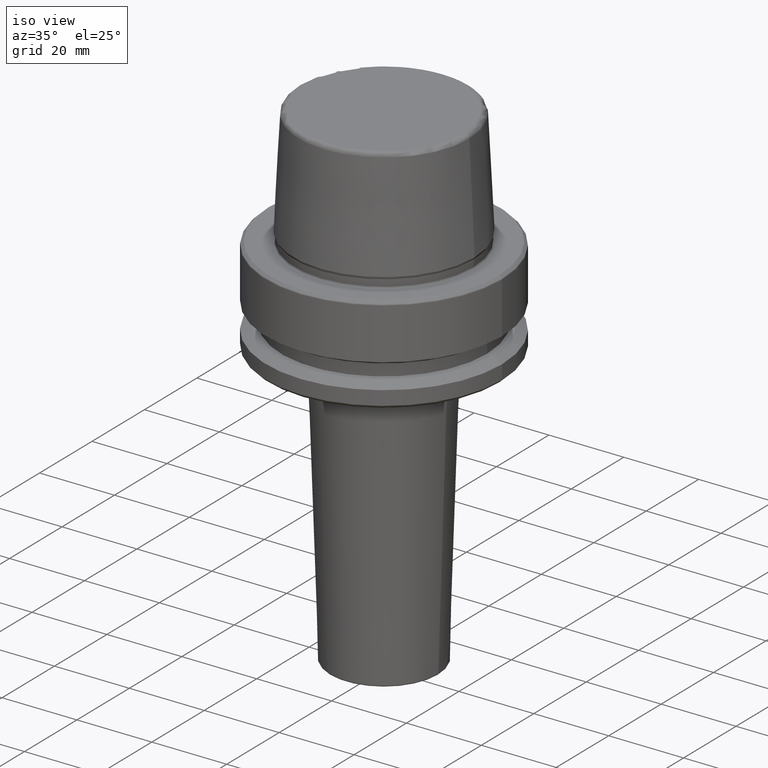
[diagram: clean part render]
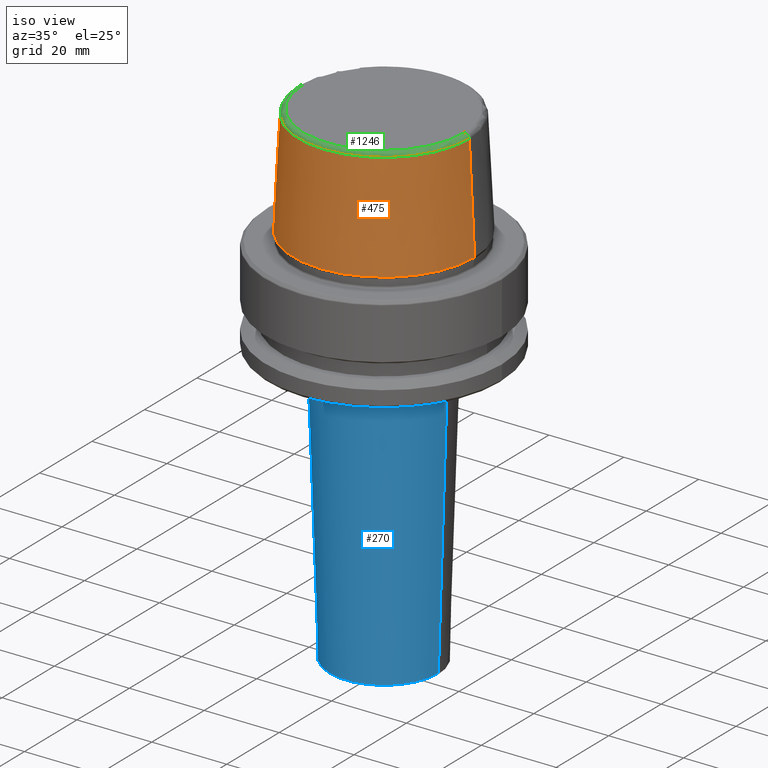
[diagram: same view with three faces highlighted in distinct colors, each labeled with its STEP entity id]
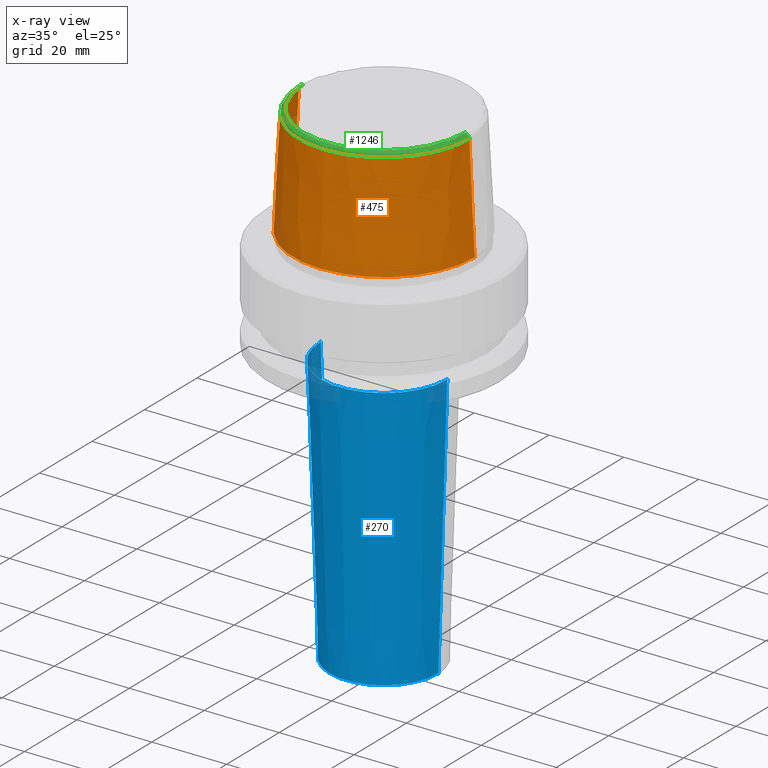
[diagram: x-ray of the same camera — body ghosted, the three highlighted faces saturated]
A machine part, iso view with three faces highlighted in distinct colors.
The next image is the same camera in x-ray (body ghosted, the three faces saturated) — at least one of them is partly hidden behind the body in this view.
Their STEP definitions:

[orange] entity #475 — the highlighted conical surface has half-angle 2.868 deg.
#160 = DIRECTION ( 'NONE',  ( 0.0000000000000000000, 0.0000000000000000000, -1.000000000000000000 ) ) ;
#234 = VECTOR ( 'NONE', #1047, 1000.000000000000200 ) ;
#281 = LINE ( 'NONE', #755, #644 ) ;
#282 = DIRECTION ( 'NONE',  ( -0.05003611051310804400, 0.0000000000000000000, -0.9987474093306675200 ) ) ;
#318 = VERTEX_POINT ( 'NONE', #787 ) ;
#371 = EDGE_LOOP ( 'NONE', ( #840, #794, #1031, #1149 ) ) ;
#378 = CARTESIAN_POINT ( 'NONE',  ( 24.19537568275369200, 2.963078938405201500E-015, 2.500000000000002200 ) ) ;
#423 = DIRECTION ( 'NONE',  ( -1.000000000000000000, 0.0000000000000000000, 0.0000000000000000000 ) ) ;
#424 = DIRECTION ( 'NONE',  ( 1.000000000000000000, 0.0000000000000000000, 0.0000000000000000000 ) ) ;
#441 = VERTEX_POINT ( 'NONE', #718 ) ;
#475 = ADVANCED_FACE ( 'NONE', ( #771 ), #1172, .T. ) ;
#502 = AXIS2_PLACEMENT_3D ( 'NONE', #893, #811, #424 ) ;
#570 = LINE ( 'NONE', #378, #234 ) ;
#603 = CARTESIAN_POINT ( 'NONE',  ( 22.77957961851797100, 2.876386432489616700E-015, 30.76004333261571900 ) ) ;
#644 = VECTOR ( 'NONE', #282, 1000.000000000000200 ) ;
#669 = DIRECTION ( 'NONE',  ( 1.000000000000000000, 0.0000000000000000000, 0.0000000000000000000 ) ) ;
#689 = EDGE_CURVE ( 'NONE', #441, #720, #281, .T. ) ;
#718 = CARTESIAN_POINT ( 'NONE',  ( -22.77957961851797100, 0.0000000000000000000, 30.76004333261571900 ) ) ;
#720 = VERTEX_POINT ( 'NONE', #1074 ) ;
#735 = CIRCLE ( 'NONE', #502, 22.77957961851797100 ) ;
#755 = CARTESIAN_POINT ( 'NONE',  ( -24.19537568275369200, 0.0000000000000000000, 2.500000000000002200 ) ) ;
#771 = FACE_OUTER_BOUND ( 'NONE', #371, .T. ) ;
#787 = CARTESIAN_POINT ( 'NONE',  ( 24.19537568275369200, 0.0000000000000000000, 2.500000000000002200 ) ) ;
#794 = ORIENTED_EDGE ( 'NONE', *, *, #971, .F. ) ;
#811 = DIRECTION ( 'NONE',  ( -0.0000000000000000000, -0.0000000000000000000, 1.000000000000000000 ) ) ;
#840 = ORIENTED_EDGE ( 'NONE', *, *, #1088, .F. ) ;
#857 = CARTESIAN_POINT ( 'NONE',  ( 0.0000000000000000000, 0.0000000000000000000, 2.500000000000002200 ) ) ;
#893 = CARTESIAN_POINT ( 'NONE',  ( 0.0000000000000000000, 0.0000000000000000000, 30.76004333261571900 ) ) ;
#971 = EDGE_CURVE ( 'NONE', #441, #997, #735, .T. ) ;
#997 = VERTEX_POINT ( 'NONE', #603 ) ;
#1031 = ORIENTED_EDGE ( 'NONE', *, *, #689, .T. ) ;
#1047 = DIRECTION ( 'NONE',  ( 0.05003611051310804400, 6.127656258166099700E-018, -0.9987474093306675200 ) ) ;
#1058 = DIRECTION ( 'NONE',  ( -0.0000000000000000000, -0.0000000000000000000, 1.000000000000000000 ) ) ;
#1074 = CARTESIAN_POINT ( 'NONE',  ( -24.19537568275369200, 2.963078938405201500E-015, 2.500000000000002200 ) ) ;
#1088 = EDGE_CURVE ( 'NONE', #997, #318, #570, .T. ) ;
#1089 = AXIS2_PLACEMENT_3D ( 'NONE', #857, #1058, #669 ) ;
#1099 = CARTESIAN_POINT ( 'NONE',  ( 0.0000000000000000000, 0.0000000000000000000, 2.500000000000002200 ) ) ;
#1100 = CIRCLE ( 'NONE', #1089, 24.19537568275369200 ) ;
#1107 = EDGE_CURVE ( 'NONE', #720, #318, #1100, .T. ) ;
#1118 = AXIS2_PLACEMENT_3D ( 'NONE', #1099, #160, #423 ) ;
#1149 = ORIENTED_EDGE ( 'NONE', *, *, #1107, .T. ) ;
#1172 = CONICAL_SURFACE ( 'NONE', #1118, 24.19537568275369200, 0.05005701257455997400 ) ;

[blue] entity #270 — the highlighted conical surface has half-angle 1.909 deg.
#17 = AXIS2_PLACEMENT_3D ( 'NONE', #666, #268, #871 ) ;
#36 = CIRCLE ( 'NONE', #723, 14.51611141949612500 ) ;
#58 = DIRECTION ( 'NONE',  ( 1.000000000000000000, 0.0000000000000000000, 0.0000000000000000000 ) ) ;
#125 = CARTESIAN_POINT ( 'NONE',  ( 16.99999999999999300, 0.0000000000000000000, -26.00000000000001100 ) ) ;
#158 = CARTESIAN_POINT ( 'NONE',  ( -16.99999999999999300, 2.081899558550499900E-015, -26.00000000000001100 ) ) ;
#163 = DIRECTION ( 'NONE',  ( 0.0000000000000000000, 0.0000000000000000000, 1.000000000000000000 ) ) ;
#190 = ORIENTED_EDGE ( 'NONE', *, *, #798, .T. ) ;
#208 = CONICAL_SURFACE ( 'NONE', #499, 16.99999999999999300, 0.03332099587824709200 ) ;
#226 = DIRECTION ( 'NONE',  ( 0.03331483023263837100, 0.0000000000000000000, 0.9994449069791543300 ) ) ;
#233 = CARTESIAN_POINT ( 'NONE',  ( 14.51611141949612500, 0.0000000000000000000, -100.5166574151163300 ) ) ;
#258 = DIRECTION ( 'NONE',  ( 1.000000000000000000, 0.0000000000000000000, 0.0000000000000000000 ) ) ;
#268 = DIRECTION ( 'NONE',  ( -0.0000000000000000000, -0.0000000000000000000, -1.000000000000000000 ) ) ;
#270 = ADVANCED_FACE ( 'NONE', ( #292 ), #208, .T. ) ;
#292 = FACE_OUTER_BOUND ( 'NONE', #418, .T. ) ;
#400 = ORIENTED_EDGE ( 'NONE', *, *, #426, .T. ) ;
#418 = EDGE_LOOP ( 'NONE', ( #673, #190, #400, #687 ) ) ;
#422 = LINE ( 'NONE', #158, #542 ) ;
#426 = EDGE_CURVE ( 'NONE', #445, #983, #600, .T. ) ;
#445 = VERTEX_POINT ( 'NONE', #233 ) ;
#499 = AXIS2_PLACEMENT_3D ( 'NONE', #1220, #1035, #58 ) ;
#542 = VECTOR ( 'NONE', #1239, 1000.000000000000000 ) ;
#600 = LINE ( 'NONE', #125, #784 ) ;
#666 = CARTESIAN_POINT ( 'NONE',  ( 0.0000000000000000000, 0.0000000000000000000, -28.90005550930209200 ) ) ;
#673 = ORIENTED_EDGE ( 'NONE', *, *, #741, .F. ) ;
#687 = ORIENTED_EDGE ( 'NONE', *, *, #1122, .T. ) ;
#702 = CARTESIAN_POINT ( 'NONE',  ( 16.90333148302325800, 0.0000000000000000000, -28.90005550930209200 ) ) ;
#723 = AXIS2_PLACEMENT_3D ( 'NONE', #852, #163, #258 ) ;
#741 = EDGE_CURVE ( 'NONE', #1179, #1080, #422, .T. ) ;
#784 = VECTOR ( 'NONE', #226, 1000.000000000000000 ) ;
#798 = EDGE_CURVE ( 'NONE', #1179, #445, #36, .T. ) ;
#829 = CARTESIAN_POINT ( 'NONE',  ( -14.51611141949612500, 1.923886009078169600E-015, -100.5166574151163300 ) ) ;
#852 = CARTESIAN_POINT ( 'NONE',  ( 0.0000000000000000000, 0.0000000000000000000, -100.5166574151163300 ) ) ;
#865 = CARTESIAN_POINT ( 'NONE',  ( -16.90333148302325800, 2.070061079561111500E-015, -28.90005550930209200 ) ) ;
#871 = DIRECTION ( 'NONE',  ( 1.000000000000000000, 0.0000000000000000000, 0.0000000000000000000 ) ) ;
#983 = VERTEX_POINT ( 'NONE', #702 ) ;
#1035 = DIRECTION ( 'NONE',  ( 0.0000000000000000000, 0.0000000000000000000, 1.000000000000000000 ) ) ;
#1080 = VERTEX_POINT ( 'NONE', #865 ) ;
#1122 = EDGE_CURVE ( 'NONE', #983, #1080, #1212, .T. ) ;
#1179 = VERTEX_POINT ( 'NONE', #829 ) ;
#1212 = CIRCLE ( 'NONE', #17, 16.90333148302325800 ) ;
#1220 = CARTESIAN_POINT ( 'NONE',  ( 0.0000000000000000000, 0.0000000000000000000, -26.00000000000001100 ) ) ;
#1239 = DIRECTION ( 'NONE',  ( -0.03331483023263837100, 4.079890020853805000E-018, 0.9994449069791543300 ) ) ;

[green] entity #1246 — the highlighted toroidal blend (fillet) surface has major radius 21.5811 mm and minor (blend) radius 1.2 mm.
#59 = CIRCLE ( 'NONE', #1017, 21.58108272732117100 ) ;
#76 = DIRECTION ( 'NONE',  ( 1.000000000000000000, 0.0000000000000000000, 0.0000000000000000000 ) ) ;
#175 = CIRCLE ( 'NONE', #757, 1.200000000000003100 ) ;
#202 = VERTEX_POINT ( 'NONE', #356 ) ;
#244 = DIRECTION ( 'NONE',  ( 0.0000000000000000000, -1.000000000000000000, 0.0000000000000000000 ) ) ;
#256 = CARTESIAN_POINT ( 'NONE',  ( 0.0000000000000000000, 0.0000000000000000000, 31.89999999999999900 ) ) ;
#262 = DIRECTION ( 'NONE',  ( 1.224646799147353200E-016, 1.000000000000000000, 0.0000000000000000000 ) ) ;
#274 = VERTEX_POINT ( 'NONE', #738 ) ;
#312 = EDGE_CURVE ( 'NONE', #202, #274, #59, .T. ) ;
#328 = EDGE_CURVE ( 'NONE', #441, #202, #175, .T. ) ;
#337 = ORIENTED_EDGE ( 'NONE', *, *, #551, .T. ) ;
#349 = ORIENTED_EDGE ( 'NONE', *, *, #312, .F. ) ;
#356 = CARTESIAN_POINT ( 'NONE',  ( -21.58108272732117100, 2.716307157494421400E-015, 31.89999999999999900 ) ) ;
#364 = DIRECTION ( 'NONE',  ( 1.000000000000000000, 0.0000000000000000000, 0.0000000000000000000 ) ) ;
#409 = TOROIDAL_SURFACE ( 'NONE', #606, 21.58108272732117100, 1.200000000000003100 ) ;
#424 = DIRECTION ( 'NONE',  ( 1.000000000000000000, 0.0000000000000000000, 0.0000000000000000000 ) ) ;
#441 = VERTEX_POINT ( 'NONE', #718 ) ;
#455 = AXIS2_PLACEMENT_3D ( 'NONE', #1216, #244, #1134 ) ;
#502 = AXIS2_PLACEMENT_3D ( 'NONE', #893, #811, #424 ) ;
#510 = CARTESIAN_POINT ( 'NONE',  ( 0.0000000000000000000, 0.0000000000000000000, 30.69999999999999200 ) ) ;
#512 = FACE_OUTER_BOUND ( 'NONE', #1078, .T. ) ;
#551 = EDGE_CURVE ( 'NONE', #997, #274, #1014, .T. ) ;
#573 = CARTESIAN_POINT ( 'NONE',  ( -21.58108272732117100, 2.642920388414810300E-015, 30.69999999999999200 ) ) ;
#603 = CARTESIAN_POINT ( 'NONE',  ( 22.77957961851797100, 2.876386432489616700E-015, 30.76004333261571900 ) ) ;
#606 = AXIS2_PLACEMENT_3D ( 'NONE', #510, #1196, #364 ) ;
#608 = ORIENTED_EDGE ( 'NONE', *, *, #328, .F. ) ;
#652 = ORIENTED_EDGE ( 'NONE', *, *, #971, .T. ) ;
#718 = CARTESIAN_POINT ( 'NONE',  ( -22.77957961851797100, 0.0000000000000000000, 30.76004333261571900 ) ) ;
#735 = CIRCLE ( 'NONE', #502, 22.77957961851797100 ) ;
#738 = CARTESIAN_POINT ( 'NONE',  ( 21.58108272732117100, 0.0000000000000000000, 31.89999999999999900 ) ) ;
#757 = AXIS2_PLACEMENT_3D ( 'NONE', #573, #262, #1137 ) ;
#777 = DIRECTION ( 'NONE',  ( -0.0000000000000000000, -0.0000000000000000000, 1.000000000000000000 ) ) ;
#811 = DIRECTION ( 'NONE',  ( -0.0000000000000000000, -0.0000000000000000000, 1.000000000000000000 ) ) ;
#893 = CARTESIAN_POINT ( 'NONE',  ( 0.0000000000000000000, 0.0000000000000000000, 30.76004333261571900 ) ) ;
#971 = EDGE_CURVE ( 'NONE', #441, #997, #735, .T. ) ;
#997 = VERTEX_POINT ( 'NONE', #603 ) ;
#1014 = CIRCLE ( 'NONE', #455, 1.200000000000003100 ) ;
#1017 = AXIS2_PLACEMENT_3D ( 'NONE', #256, #777, #76 ) ;
#1078 = EDGE_LOOP ( 'NONE', ( #608, #652, #337, #349 ) ) ;
#1134 = DIRECTION ( 'NONE',  ( 0.0000000000000000000, 0.0000000000000000000, -1.000000000000000000 ) ) ;
#1137 = DIRECTION ( 'NONE',  ( -1.000000000000000000, 1.224646799147353200E-016, 0.0000000000000000000 ) ) ;
#1196 = DIRECTION ( 'NONE',  ( -0.0000000000000000000, -0.0000000000000000000, 1.000000000000000000 ) ) ;
#1216 = CARTESIAN_POINT ( 'NONE',  ( 21.58108272732117100, 0.0000000000000000000, 30.69999999999999200 ) ) ;
#1246 = ADVANCED_FACE ( 'NONE', ( #512 ), #409, .T. ) ;